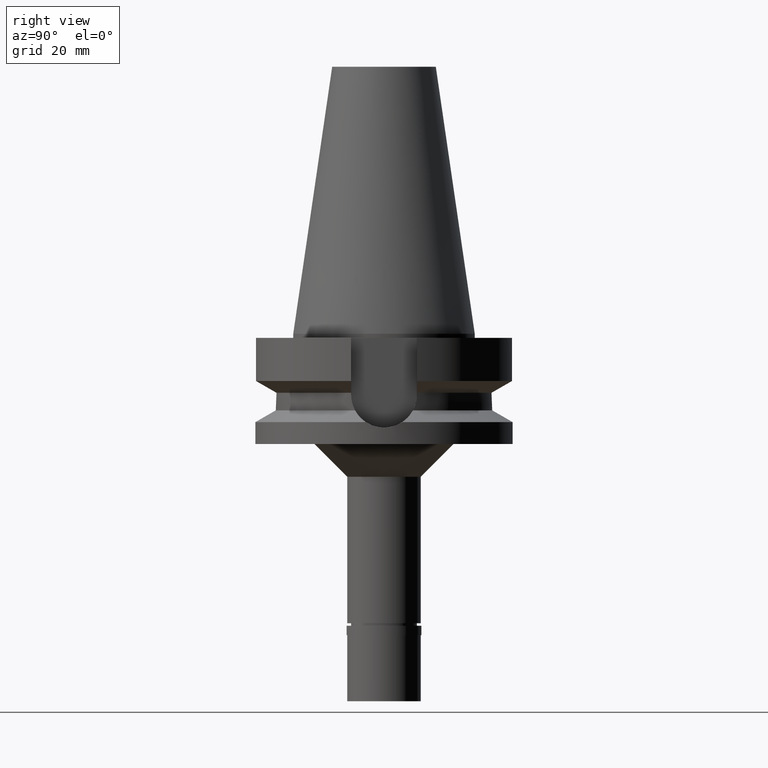
[diagram: clean part render]
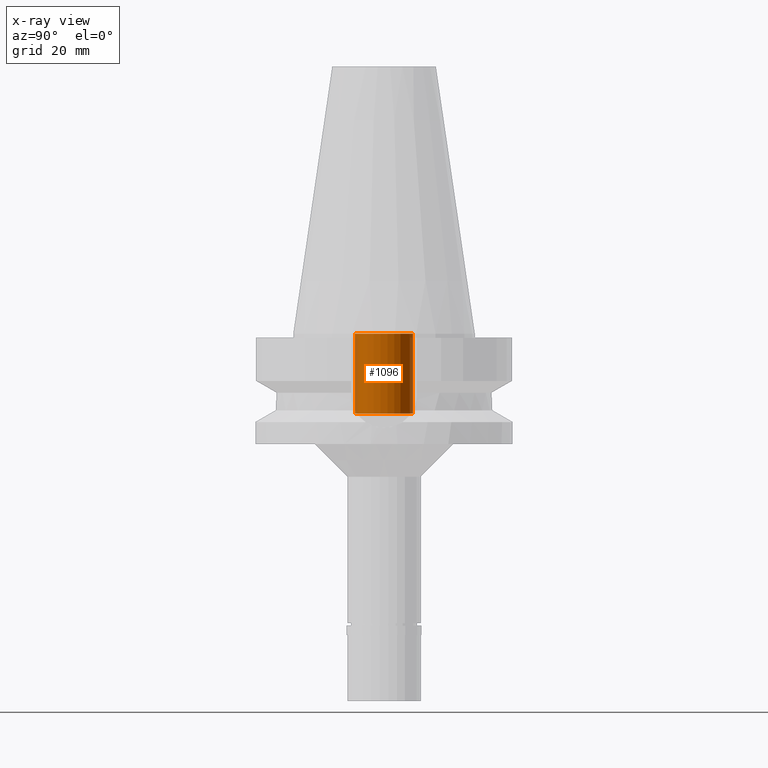
[diagram: x-ray — body ghosted, one internal face saturated and labeled with its STEP entity id]
A machine part, right view, then the same camera in x-ray: the body is ghosted and one INTERNAL B-rep face — a face not visible from any outside direction — is saturated and labeled: STEP entity #1096.
In plain terms, the highlighted cylindrical surface (edge-blend (fillet) strip) has radius 7.1 mm, axis along (0, 0, -1).
Its self-contained STEP definition (entity closure, byte-faithful):
#128 = CARTESIAN_POINT ( 'NONE',  ( 0.0000000000000000000, 7.100000000000000533, -19.59999999999999787 ) ) ;
#144 = DIRECTION ( 'NONE',  ( 0.0000000000000000000, 0.0000000000000000000, 1.000000000000000000 ) ) ;
#181 = ORIENTED_EDGE ( 'NONE', *, *, #2871, .F. ) ;
#222 = CARTESIAN_POINT ( 'NONE',  ( 0.0000000000000000000, 2.117904174444999906E-14, -19.59999999999999787 ) ) ;
#260 = AXIS2_PLACEMENT_3D ( 'NONE', #2690, #673, #2466 ) ;
#290 = VERTEX_POINT ( 'NONE', #128 ) ;
#336 = DIRECTION ( 'NONE',  ( 0.0000000000000000000, 0.0000000000000000000, 1.000000000000000000 ) ) ;
#542 = DIRECTION ( 'NONE',  ( 0.0000000000000000000, -1.000000000000000000, 0.0000000000000000000 ) ) ;
#559 = VERTEX_POINT ( 'NONE', #1863 ) ;
#673 = DIRECTION ( 'NONE',  ( 0.0000000000000000000, 0.0000000000000000000, -1.000000000000000000 ) ) ;
#727 = VERTEX_POINT ( 'NONE', #1712 ) ;
#728 = AXIS2_PLACEMENT_3D ( 'NONE', #1498, #144, #542 ) ;
#739 = EDGE_CURVE ( 'NONE', #559, #1971, #1939, .T. ) ;
#971 = VECTOR ( 'NONE', #336, 1000.000000000000000 ) ;
#1017 = LINE ( 'NONE', #1911, #971 ) ;
#1096 = ADVANCED_FACE ( 'NONE', ( #2452 ), #1792, .F. ) ;
#1194 = EDGE_CURVE ( 'NONE', #290, #727, #1662, .T. ) ;
#1234 = VECTOR ( 'NONE', #1852, 1000.000000000000000 ) ;
#1308 = ORIENTED_EDGE ( 'NONE', *, *, #739, .T. ) ;
#1406 = CARTESIAN_POINT ( 'NONE',  ( 0.0000000000000000000, 7.100000000000000533, -4.263256414560999963E-14 ) ) ;
#1498 = CARTESIAN_POINT ( 'NONE',  ( 0.0000000000000000000, 2.117904174444999906E-14, -4.263256414560999963E-14 ) ) ;
#1530 = EDGE_LOOP ( 'NONE', ( #1847, #2701, #1308, #181 ) ) ;
#1629 = DIRECTION ( 'NONE',  ( 0.0000000000000000000, 1.000000000000000000, 0.0000000000000000000 ) ) ;
#1653 = LINE ( 'NONE', #2779, #1234 ) ;
#1662 = CIRCLE ( 'NONE', #2232, 7.100000000000000533 ) ;
#1712 = CARTESIAN_POINT ( 'NONE',  ( 0.0000000000000000000, -7.100000000000000533, -19.59999999999999787 ) ) ;
#1792 = CYLINDRICAL_SURFACE ( 'NONE', #260, 7.100000000000000533 ) ;
#1798 = DIRECTION ( 'NONE',  ( 0.0000000000000000000, 0.0000000000000000000, -1.000000000000000000 ) ) ;
#1847 = ORIENTED_EDGE ( 'NONE', *, *, #1194, .T. ) ;
#1852 = DIRECTION ( 'NONE',  ( 0.0000000000000000000, 0.0000000000000000000, 1.000000000000000000 ) ) ;
#1863 = CARTESIAN_POINT ( 'NONE',  ( 0.0000000000000000000, -7.100000000000000533, -4.263256414560999963E-14 ) ) ;
#1911 = CARTESIAN_POINT ( 'NONE',  ( 0.0000000000000000000, -7.100000000000000533, -19.59999999999999787 ) ) ;
#1939 = CIRCLE ( 'NONE', #728, 7.100000000000000533 ) ;
#1971 = VERTEX_POINT ( 'NONE', #1406 ) ;
#2232 = AXIS2_PLACEMENT_3D ( 'NONE', #222, #1798, #1629 ) ;
#2452 = FACE_OUTER_BOUND ( 'NONE', #1530, .T. ) ;
#2466 = DIRECTION ( 'NONE',  ( 0.0000000000000000000, -1.000000000000000000, 0.0000000000000000000 ) ) ;
#2585 = EDGE_CURVE ( 'NONE', #727, #559, #1017, .T. ) ;
#2690 = CARTESIAN_POINT ( 'NONE',  ( 0.0000000000000000000, 2.117904174444999906E-14, 72.93999999999999773 ) ) ;
#2701 = ORIENTED_EDGE ( 'NONE', *, *, #2585, .T. ) ;
#2779 = CARTESIAN_POINT ( 'NONE',  ( 0.0000000000000000000, 7.100000000000000533, -19.59999999999999787 ) ) ;
#2871 = EDGE_CURVE ( 'NONE', #290, #1971, #1653, .T. ) ;